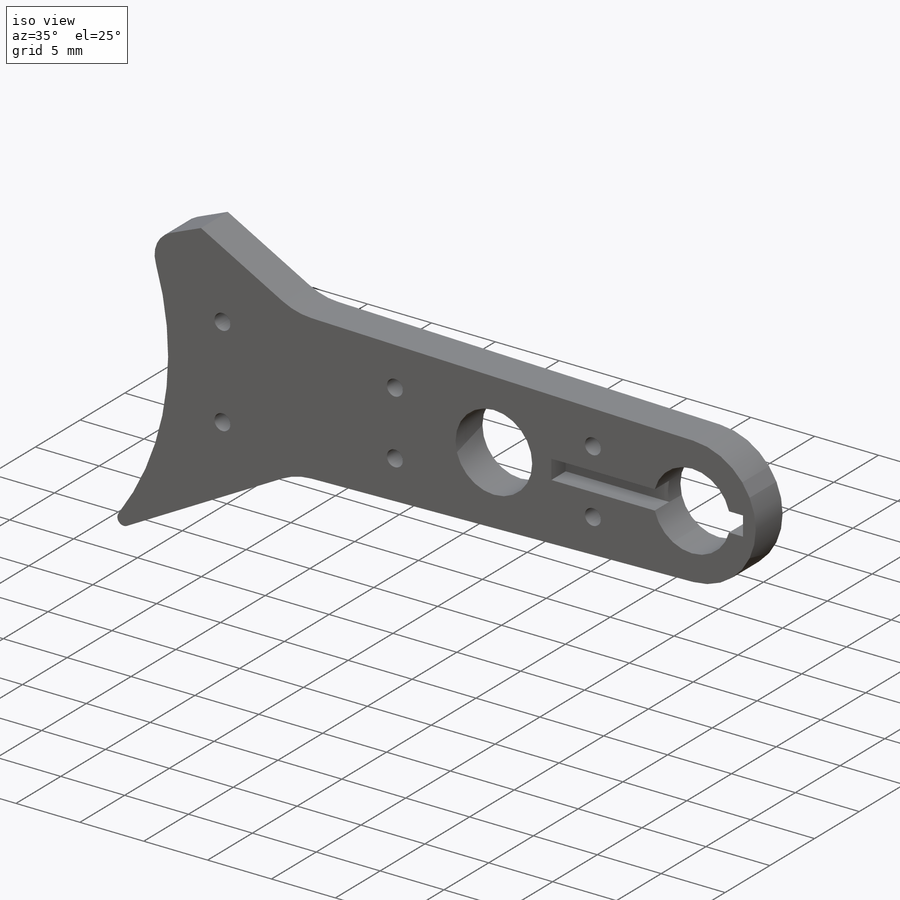
[diagram: iso view]
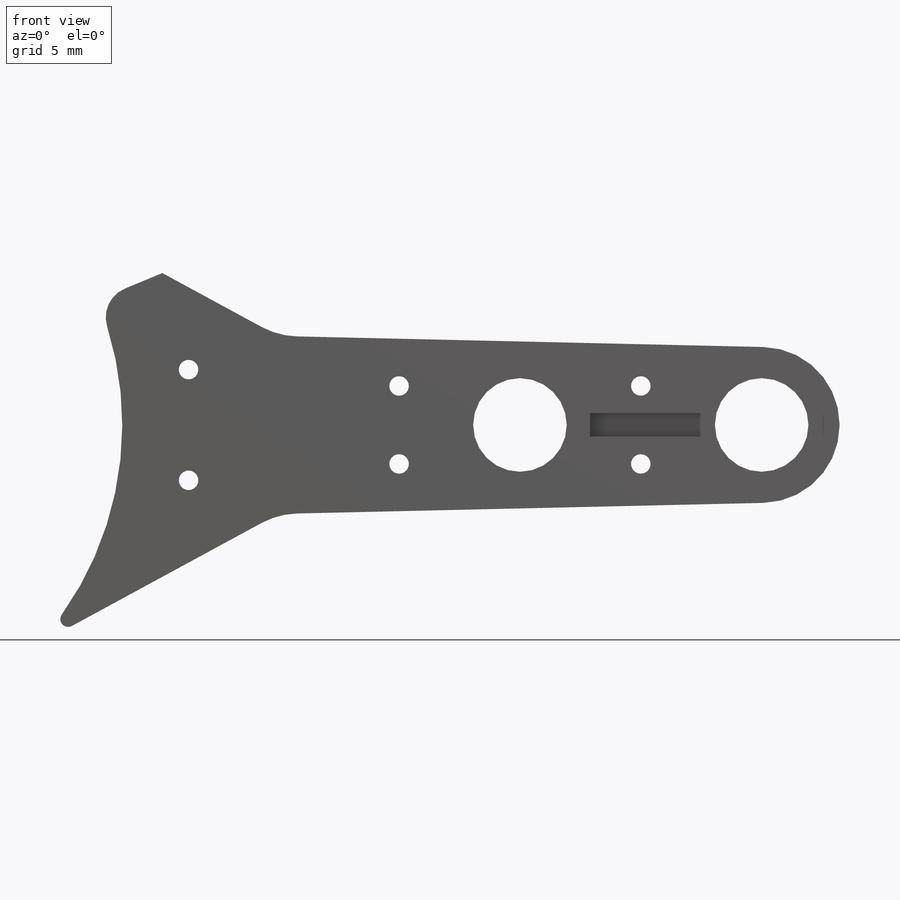
[diagram: front view]
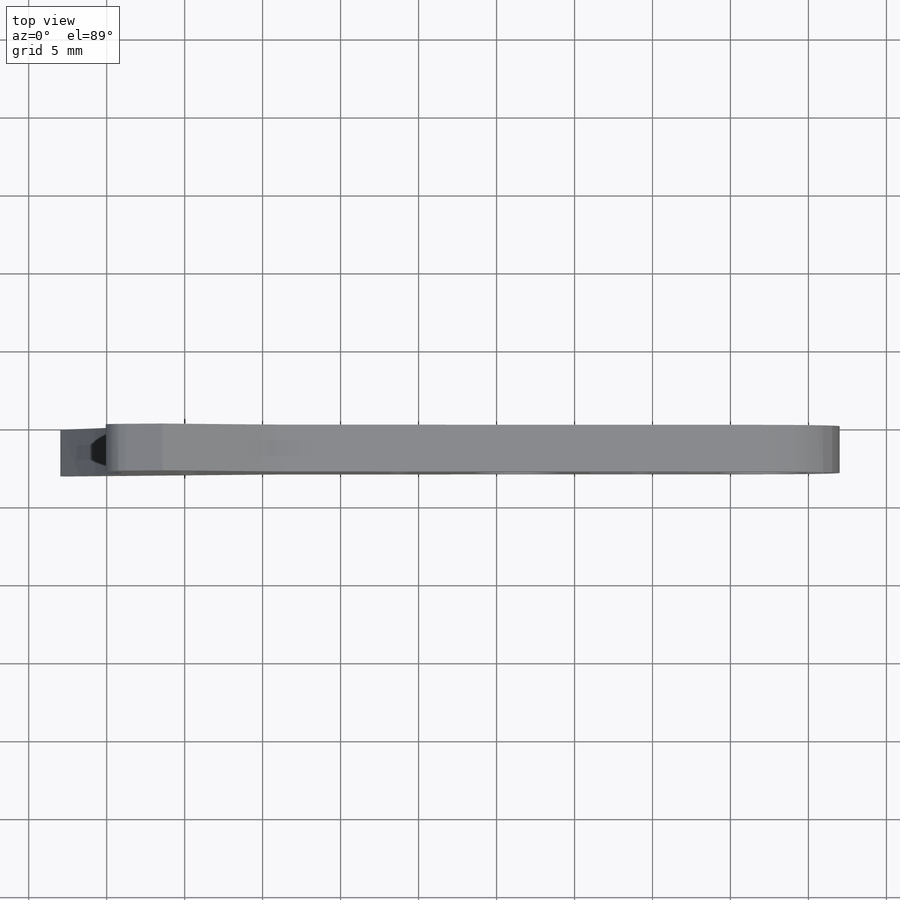
[diagram: top view]
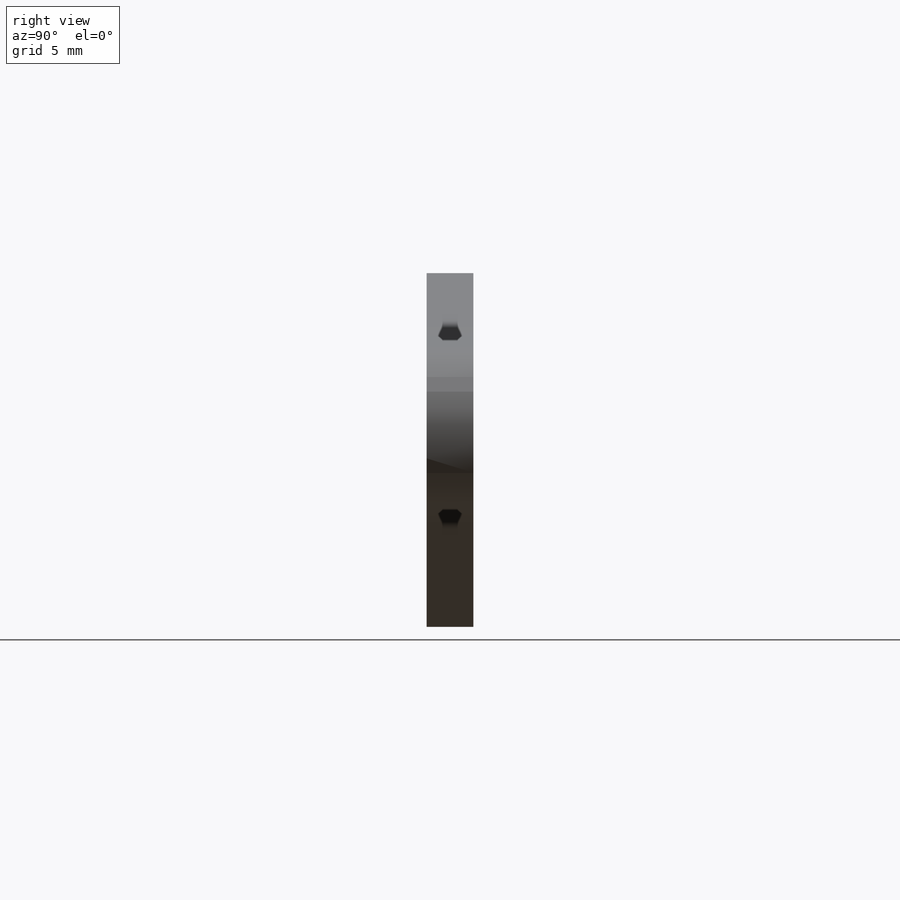
[diagram: right view]
SOLIDWORKS PART (.sldprt)
format: sldprt  version: not decoded by parser v0  size: 455,168 bytes
history: native  units: mm
features: sketch x10, cut_extrude x4, fillet x3, extrude x2, hole x2, material x1, pattern_circular x1, chamfer x1 (+12 scaffold rows collapsed)
feature tree (36):
  scaffold x12  (default folders/planes/origin — collapsed)
  material  "POM copolymère d'acétal"
  sketch  "Sketch1"  dims[c1.D1=39.0mm c1.D4=6.0mm c1.D3=28.0mm c1.D5=6.0mm c1.D7=5.0mm c1.D8=33.0mm c2.D1=33.0mm c2.D3=33.0mm c2.D2=15.5mm c3.D3=55.0mm c3.D5=3.0mm c3.D6=12.0mm c4.D5=62.0mm c4.D1=2.5mm c4.D3=2.5mm]
  extrude  "Boss-Extrude1"  Depth=3mm
  hole  "M1.6 Clearance Hole2"  Diameter=1.8mm Depth=11.5mm
  sketch  "Sketch5"  dims[D1=33.0mm]
  sketch  "Sketch4"  dims[hole-wizard template sketch: 47 standard entries collapsed; hole parameters kept: c15.Hole Depth=11.5mm c15.D3=~14.816244mm c15.Drill Angle=180.0deg]
  pattern_circular  "CirPattern1"  Count=12 Angle=360deg
  hole  "Trou taraudé M1.61"  Diameter=1.25mm Depth=3mm
  sketch  "Sketch7"  dims[c1.D1=45.0mm c1.D2=5.0mm c1.D3=5.0mm c2.D1=5.0mm c2.D2=15.5mm]
  sketch  "Sketch6"  dims[hole-wizard template sketch: 60 standard entries collapsed; hole parameters kept: c18.Profondeur du trou pour taraudage jusqu'au prochain=3.0mm]
  chamfer  "Chamfer2"  Distance=7mm Angle=45deg
  sketch  "Esquisse1"  dims[D1=42.0mm]
  cut_extrude  "Enlèv. mat.-Extru.1"  Depth=10mm
  sketch  "Esquisse3"  dims[c1.D1=43.0mm c1.D4=1.25mm c1.D5=1.25mm c1.D6=43.0mm c1.D2=~25.336995mm c2.D2=8.0deg c2.D3=~25.336995mm c3.D3=8.0deg c3.D6=4.0mm]
  cut_extrude  "Enlèv. mat.-Extru.2"  [1 undecoded]
  sketch  "Esquisse5"  dims[D1=0.75mm D2=1.5mm D3=4.0mm D4=15.0mm]
  cut_extrude  "Enlèv. mat.-Extru.3"  Depth=1.6mm
  sketch  "Esquisse9"  dims[c1.D1=15.5mm c2.D1=22.5deg c2.D2=24.0mm]
  cut_extrude  "Enlèv. mat.-Extru.4"  Depth=10mm
  fillet  "Congé1"  Radius=2mm
  sketch  "Esquisse10"  dims[c1.D1=~10.49122mm c2.D1=28.5deg c2.D2=15.5mm c2.D3=~19.857714mm c3.D3=28.5deg]
  extrude  "Boss.-Extru.1"  Depth=3mm
  fillet  "Congé2"  Radius=5mm
  fillet  "Congé3"  Radius=0.5mm
decode coverage: 22 of 23 modeling features carry decoded parameters
note: ~ marks probable driven/reference dimensions
note: 1 parameter value undecoded
note: suppression state not decoded; provenance and decode notes live in map.json
